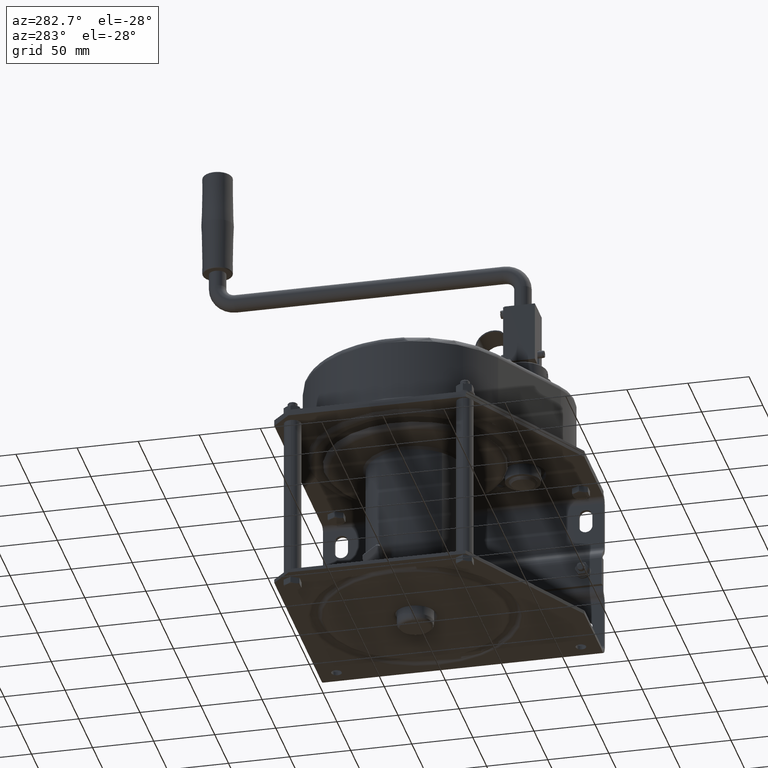
[diagram: clean part render]
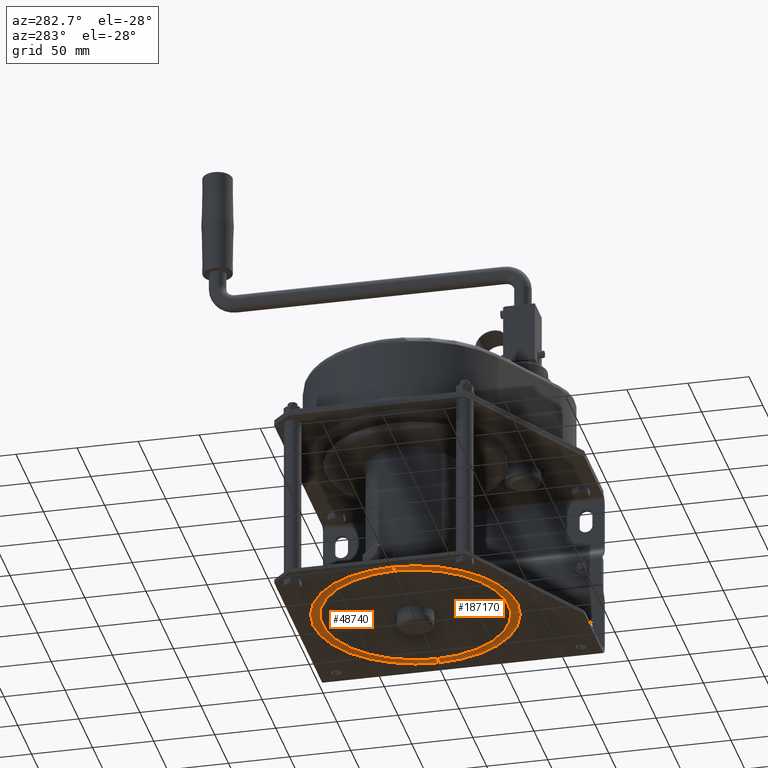
[diagram: same view with one multi-face feature highlighted, each face labeled with its STEP entity id]
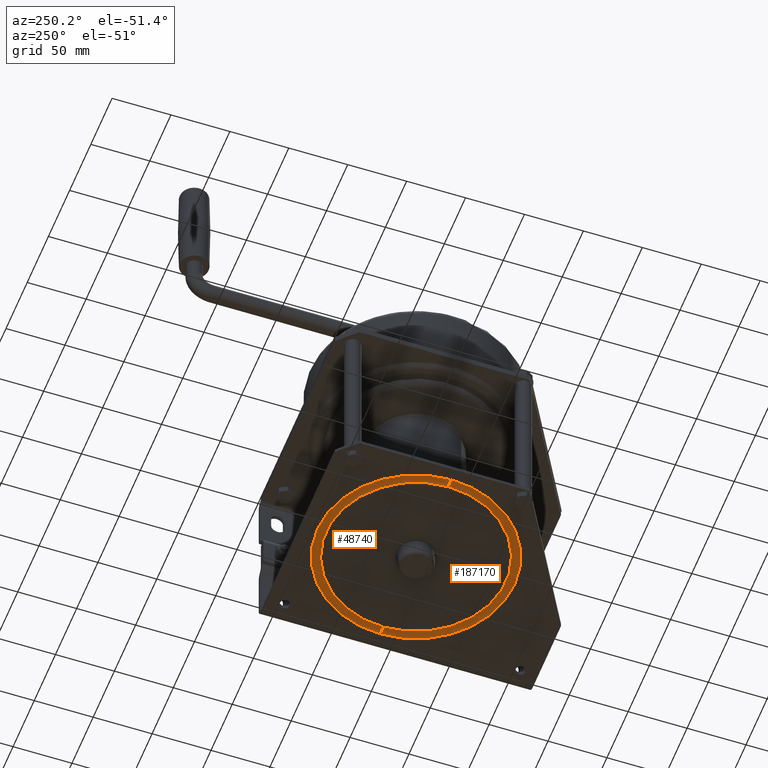
[diagram: same view with one multi-face feature highlighted, each face labeled with its STEP entity id]
A machine part, auxiliary view. The highlighted faces form ONE feature: a constant-radius fillet chain: 2 tangent blend faces with common blend radius 5 mm. The faces share edges in the B-rep.
A second angle (auxiliary view) of the same feature is appended — it is thin or edge-on in the first view.
Their STEP definitions:
[1] entity #48740 (Torus):
#1770=CARTESIAN_POINT('',(83.7267799624997,1.33333333333331,0.));
#1780=VERTEX_POINT('',#1770);
#1810=CARTESIAN_POINT('',(0.,1.33333333333331,0.));
#1820=DIRECTION('',(0.,1.,0.));
#1830=DIRECTION('',(1.,0.,0.));
#1840=AXIS2_PLACEMENT_3D('',#1810,#1820,#1830);
#1850=CIRCLE('',#1840,83.7267799624996);
#1860=CARTESIAN_POINT('',(-83.7267799624996,1.33333333333332,0.));
#1870=VERTEX_POINT('',#1860);
#1880=EDGE_CURVE('',#1870,#1780,#1850,.T.);
#48410=CARTESIAN_POINT('',(0.,-2.,0.));
#48420=DIRECTION('',(0.,1.,0.));
#48430=DIRECTION('',(1.,0.,0.));
#48440=AXIS2_PLACEMENT_3D('',#48410,#48420,#48430);
#48450=TOROIDAL_SURFACE('',#48440,80.,5.);
#48460=CARTESIAN_POINT('',(-80.,-2.,0.));
#48470=DIRECTION('',(0.,0.,1.));
#48480=DIRECTION('',(-1.,0.,0.));
#48490=AXIS2_PLACEMENT_3D('',#48460,#48470,#48480);
#48500=CIRCLE('',#48490,5.);
#48510=CARTESIAN_POINT('',(-76.2732200375004,1.33333333333335,0.));
#48520=VERTEX_POINT('',#48510);
#48530=EDGE_CURVE('',#48520,#1870,#48500,.T.);
#48540=ORIENTED_EDGE('',*,*,#48530,.F.);
#48550=ORIENTED_EDGE('',*,*,#1880,.F.);
#48560=CARTESIAN_POINT('',(80.,-2.,0.));
#48570=DIRECTION('',(0.,0.,-1.));
#48580=DIRECTION('',(1.,0.,0.));
#48590=AXIS2_PLACEMENT_3D('',#48560,#48570,#48580);
#48600=CIRCLE('',#48590,5.);
#48610=CARTESIAN_POINT('',(76.2732200375004,1.33333333333335,0.));
#48620=VERTEX_POINT('',#48610);
#48630=EDGE_CURVE('',#48620,#1780,#48600,.T.);
#48640=ORIENTED_EDGE('',*,*,#48630,.T.);
#48650=CARTESIAN_POINT('',(0.,1.33333333333334,0.));
#48660=DIRECTION('',(0.,1.,0.));
#48670=DIRECTION('',(1.,0.,0.));
#48680=AXIS2_PLACEMENT_3D('',#48650,#48660,#48670);
#48690=CIRCLE('',#48680,76.2732200375004);
#48700=EDGE_CURVE('',#48520,#48620,#48690,.T.);
#48710=ORIENTED_EDGE('',*,*,#48700,.T.);
#48720=EDGE_LOOP('',(#48710,#48640,#48550,#48540));
#48730=FACE_OUTER_BOUND('',#48720,.T.);
#48740=ADVANCED_FACE('',(#48730),#48450,.F.);
[2] entity #187170 (Torus):
#1770=CARTESIAN_POINT('',(83.7267799624997,1.33333333333331,0.));
#1780=VERTEX_POINT('',#1770);
#1810=CARTESIAN_POINT('',(0.,1.33333333333331,0.));
#1820=DIRECTION('',(0.,1.,0.));
#1830=DIRECTION('',(1.,0.,0.));
#1840=AXIS2_PLACEMENT_3D('',#1810,#1820,#1830);
#1850=CIRCLE('',#1840,83.7267799624996);
#1860=CARTESIAN_POINT('',(-83.7267799624996,1.33333333333332,0.));
#1870=VERTEX_POINT('',#1860);
#48460=CARTESIAN_POINT('',(-80.,-2.,0.));
#48470=DIRECTION('',(0.,0.,1.));
#48480=DIRECTION('',(-1.,0.,0.));
#48490=AXIS2_PLACEMENT_3D('',#48460,#48470,#48480);
#48500=CIRCLE('',#48490,5.);
#48510=CARTESIAN_POINT('',(-76.2732200375004,1.33333333333335,0.));
#48520=VERTEX_POINT('',#48510);
#48530=EDGE_CURVE('',#48520,#1870,#48500,.T.);
#48560=CARTESIAN_POINT('',(80.,-2.,0.));
#48570=DIRECTION('',(0.,0.,-1.));
#48580=DIRECTION('',(1.,0.,0.));
#48590=AXIS2_PLACEMENT_3D('',#48560,#48570,#48580);
#48600=CIRCLE('',#48590,5.);
#48610=CARTESIAN_POINT('',(76.2732200375004,1.33333333333335,0.));
#48620=VERTEX_POINT('',#48610);
#48630=EDGE_CURVE('',#48620,#1780,#48600,.T.);
#48650=CARTESIAN_POINT('',(0.,1.33333333333334,0.));
#48660=DIRECTION('',(0.,1.,0.));
#48670=DIRECTION('',(1.,0.,0.));
#48680=AXIS2_PLACEMENT_3D('',#48650,#48660,#48670);
#48690=CIRCLE('',#48680,76.2732200375004);
#187040=CARTESIAN_POINT('',(0.,-2.,0.));
#187050=DIRECTION('',(0.,1.,0.));
#187060=DIRECTION('',(1.,0.,0.));
#187070=AXIS2_PLACEMENT_3D('',#187040,#187050,#187060);
#187080=TOROIDAL_SURFACE('',#187070,80.,5.);
#187090=EDGE_CURVE('',#1780,#1870,#1850,.T.);
#187100=ORIENTED_EDGE('',*,*,#187090,.F.);
#187110=ORIENTED_EDGE('',*,*,#48530,.T.);
#187120=EDGE_CURVE('',#48620,#48520,#48690,.T.);
#187130=ORIENTED_EDGE('',*,*,#187120,.T.);
#187140=ORIENTED_EDGE('',*,*,#48630,.F.);
#187150=EDGE_LOOP('',(#187140,#187130,#187110,#187100));
#187160=FACE_OUTER_BOUND('',#187150,.T.);
#187170=ADVANCED_FACE('',(#187160),#187080,.F.);